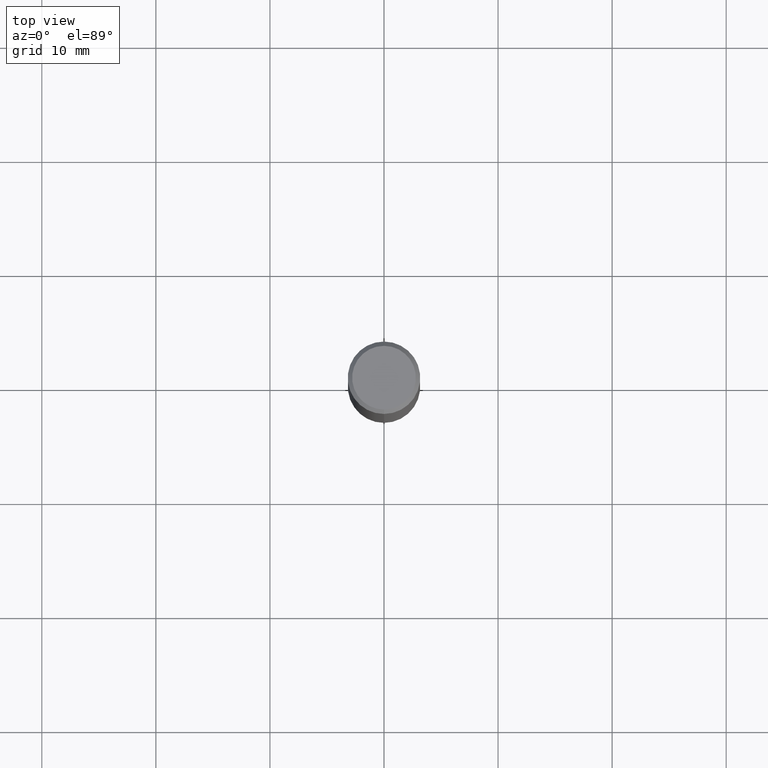
[diagram: clean part render]
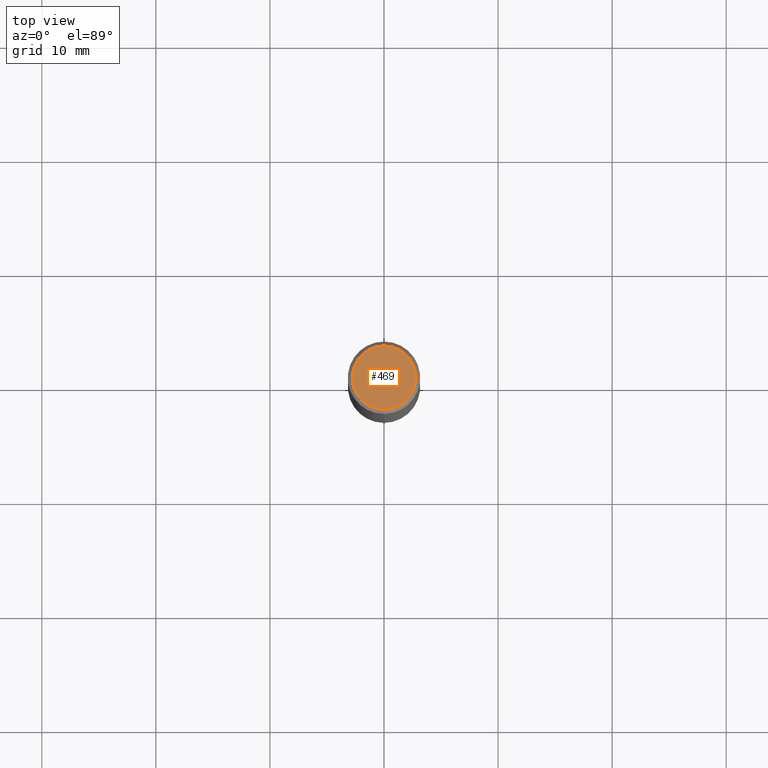
[diagram: same view with one face highlighted and labeled with its STEP entity id]
A machine part, top view. The second image highlights one B-rep face of the part: STEP entity #469.
In plain terms, the highlighted planar face has unit normal (0, -0, -1).
Its self-contained STEP definition (entity closure, byte-faithful):
#10 = DIRECTION ( 'NONE',  ( -2.445484535067431049E-29, 3.491458814188467583E-15, 1.000000000000000000 ) ) ;
#11 = DIRECTION ( 'NONE',  ( -2.445484535067431049E-29, 3.491458814188467583E-15, 1.000000000000000000 ) ) ;
#27 = CIRCLE ( 'NONE', #373, 0.1100000000000000283 ) ;
#43 = AXIS2_PLACEMENT_3D ( 'NONE', #253, #11, #100 ) ;
#69 = EDGE_LOOP ( 'NONE', ( #85, #107 ) ) ;
#85 = ORIENTED_EDGE ( 'NONE', *, *, #220, .T. ) ;
#86 = EDGE_CURVE ( 'NONE', #120, #382, #139, .T. ) ;
#100 = DIRECTION ( 'NONE',  ( -6.982962677686265922E-15, -1.000000000000000000, 3.491458814188467188E-15 ) ) ;
#102 = DIRECTION ( 'NONE',  ( 6.982962677686265922E-15, 1.000000000000000000, -3.491458814188467188E-15 ) ) ;
#107 = ORIENTED_EDGE ( 'NONE', *, *, #86, .T. ) ;
#120 = VERTEX_POINT ( 'NONE', #252 ) ;
#139 = CIRCLE ( 'NONE', #43, 0.1100000000000000283 ) ;
#173 = CARTESIAN_POINT ( 'NONE',  ( 3.975789068314252337E-48, -5.676299967089012762E-34, -1.625767413902138821E-19 ) ) ;
#187 = CARTESIAN_POINT ( 'NONE',  ( 7.681258945454894762E-16, 0.1100000000000000283, -3.841417579314265946E-16 ) ) ;
#220 = EDGE_CURVE ( 'NONE', #382, #120, #27, .T. ) ;
#242 = AXIS2_PLACEMENT_3D ( 'NONE', #187, #406, #102 ) ;
#252 = CARTESIAN_POINT ( 'NONE',  ( -8.061085147381547495E-16, -0.1100000000000000283, 3.838978928193412689E-16 ) ) ;
#253 = CARTESIAN_POINT ( 'NONE',  ( 3.975789068314252337E-48, -5.676299967089012762E-34, -1.625767413902138821E-19 ) ) ;
#254 = DIRECTION ( 'NONE',  ( -6.982962677686265922E-15, -1.000000000000000000, 3.491458814188467188E-15 ) ) ;
#271 = FACE_OUTER_BOUND ( 'NONE', #69, .T. ) ;
#338 = PLANE ( 'NONE',  #242 ) ;
#373 = AXIS2_PLACEMENT_3D ( 'NONE', #173, #10, #254 ) ;
#382 = VERTEX_POINT ( 'NONE', #437 ) ;
#406 = DIRECTION ( 'NONE',  ( 2.445484535067431049E-29, -3.491458814188467188E-15, -1.000000000000000000 ) ) ;
#437 = CARTESIAN_POINT ( 'NONE',  ( 8.204981146281365554E-16, 0.1100000000000000283, -3.842230463021216703E-16 ) ) ;
#469 = ADVANCED_FACE ( 'NONE', ( #271 ), #338, .F. ) ;